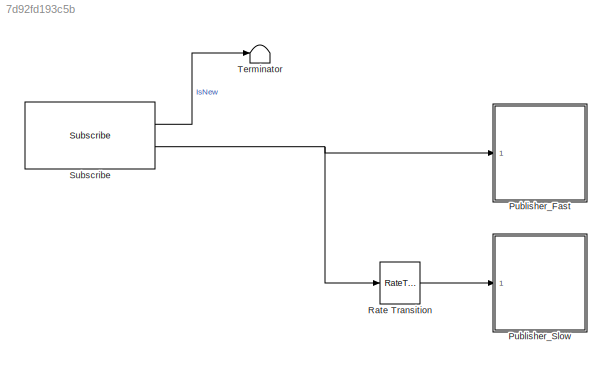
MODEL slx_7d92fd193c5b
KIND model
CONFIG AbsTol = auto
CONFIG EnableMultiTasking = off
CONFIG FixedStep = auto
CONFIG MaxStep = auto
CONFIG MinStep = auto
CONFIG RelTol = 1e-3
CONFIG SampleTimeConstraint = Unconstrained
CONFIG Solver = FixedStepAuto
CONFIG SolverName = FixedStepAuto
CONFIG StartTime = 0.0
CONFIG StopTime = 10.0
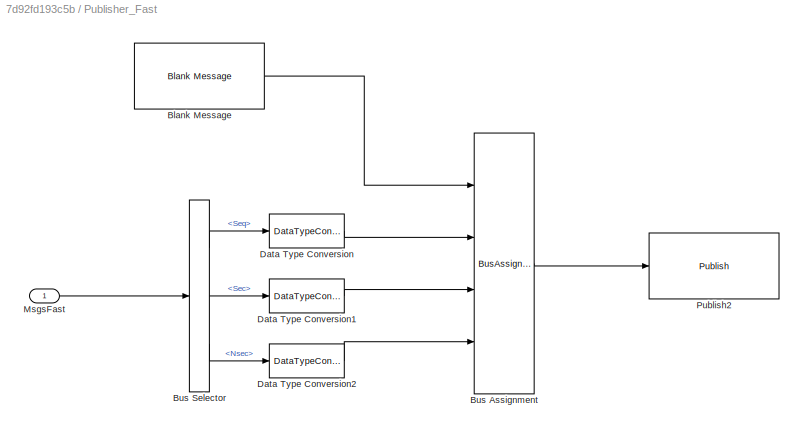
BLOCK [SubSystem] Publisher_Fast
  Ports = [1]
  RequestExecContextInheritance = off
  SystemSampleTime = 0.01
  TreatAsAtomicUnit = on
  Variant = off
BLOCK [Reference] Publisher_Fast/Blank Message  REF=robotlib/Blank Message
  Ports = [0, 1]
  SourceBlock = robotlib/Blank Message
  SourceLibraryInfo = This block requires Robotics System Toolbox
  SourceProductBaseCode = RO
  SourceProductName = Robotics System Toolbox
  SourceType = ROS Blank Message
BLOCK [BusAssignment] Publisher_Fast/Bus Assignment
  AssignedSignals = Point.X,Point.Y,Point.Z
  Ports = [4, 1]
BLOCK [BusSelector] Publisher_Fast/Bus Selector
  OutputAsBus = off
  OutputSignals = Header.Seq,Header.Stamp.Sec,Header.Stamp.Nsec
  Ports = [1, 3]
BLOCK [DataTypeConversion] Publisher_Fast/Data Type Conversion
  RndMeth = Floor
  SaturateOnIntegerOverflow = off
BLOCK [DataTypeConversion] Publisher_Fast/Data Type Conversion1
  RndMeth = Floor
  SaturateOnIntegerOverflow = off
BLOCK [DataTypeConversion] Publisher_Fast/Data Type Conversion2
  RndMeth = Floor
  SaturateOnIntegerOverflow = off
BLOCK [Inport] Publisher_Fast/MsgsFast
  IconDisplay = Port number
BLOCK [Reference] Publisher_Fast/Publish2  REF=robotlib/Publish
  AttributesFormatString = %<messageType>
  Ports = [1]
  SourceBlock = robotlib/Publish
  SourceLibraryInfo = This block requires Robotics System Toolbox
  SourceProductBaseCode = RO
  SourceProductName = Robotics System Toolbox
  SourceType = ROS Publish
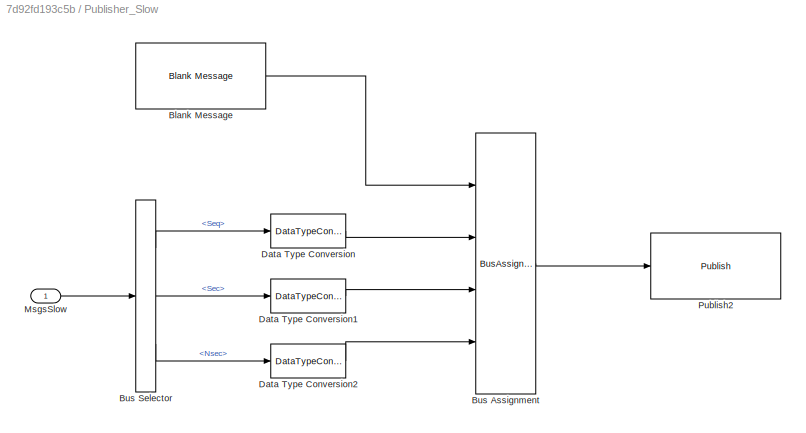
BLOCK [SubSystem] Publisher_Slow
  Ports = [1]
  RequestExecContextInheritance = off
  SystemSampleTime = 0.05
  TreatAsAtomicUnit = on
  Variant = off
BLOCK [Reference] Publisher_Slow/Blank Message  REF=robotlib/Blank Message
  Ports = [0, 1]
  SourceBlock = robotlib/Blank Message
  SourceLibraryInfo = This block requires Robotics System Toolbox
  SourceProductBaseCode = RO
  SourceProductName = Robotics System Toolbox
  SourceType = ROS Blank Message
BLOCK [BusAssignment] Publisher_Slow/Bus Assignment
  AssignedSignals = Point.X,Point.Y,Point.Z
  Ports = [4, 1]
BLOCK [BusSelector] Publisher_Slow/Bus Selector
  OutputAsBus = off
  OutputSignals = Header.Seq,Header.Stamp.Sec,Header.Stamp.Nsec
  Ports = [1, 3]
BLOCK [DataTypeConversion] Publisher_Slow/Data Type Conversion
  RndMeth = Floor
  SaturateOnIntegerOverflow = off
BLOCK [DataTypeConversion] Publisher_Slow/Data Type Conversion1
  RndMeth = Floor
  SaturateOnIntegerOverflow = off
BLOCK [DataTypeConversion] Publisher_Slow/Data Type Conversion2
  RndMeth = Floor
  SaturateOnIntegerOverflow = off
BLOCK [Inport] Publisher_Slow/MsgsSlow
  IconDisplay = Port number
BLOCK [Reference] Publisher_Slow/Publish2  REF=robotlib/Publish
  AttributesFormatString = %<messageType>
  Ports = [1]
  SourceBlock = robotlib/Publish
  SourceLibraryInfo = This block requires Robotics System Toolbox
  SourceProductBaseCode = RO
  SourceProductName = Robotics System Toolbox
  SourceType = ROS Publish
BLOCK [RateTransition] Rate Transition
  OutPortSampleTimeOpt = Inherit
BLOCK [Reference] Subscribe  REF=robotlib/Subscribe
  Ports = [0, 2]
  SourceBlock = robotlib/Subscribe
  SourceLibraryInfo = This block requires Robotics System Toolbox
  SourceProductBaseCode = RO
  SourceProductName = Robotics System Toolbox
  SourceType = ROS Subscribe
BLOCK [Terminator] Terminator
LINE Publisher_Fast/Blank Message:1 -> Publisher_Fast/Bus Assignment:1
LINE Publisher_Fast/Bus Assignment:1 -> Publisher_Fast/Publish2:1
LINE Publisher_Fast/Bus Selector:1 -> Publisher_Fast/Data Type Conversion:1
LINE Publisher_Fast/Bus Selector:2 -> Publisher_Fast/Data Type Conversion1:1
LINE Publisher_Fast/Bus Selector:3 -> Publisher_Fast/Data Type Conversion2:1
LINE Publisher_Fast/Data Type Conversion1:1 -> Publisher_Fast/Bus Assignment:3
LINE Publisher_Fast/Data Type Conversion2:1 -> Publisher_Fast/Bus Assignment:4
LINE Publisher_Fast/Data Type Conversion:1 -> Publisher_Fast/Bus Assignment:2
LINE Publisher_Fast/MsgsFast:1 -> Publisher_Fast/Bus Selector:1
LINE Publisher_Slow/Blank Message:1 -> Publisher_Slow/Bus Assignment:1
LINE Publisher_Slow/Bus Assignment:1 -> Publisher_Slow/Publish2:1
LINE Publisher_Slow/Bus Selector:1 -> Publisher_Slow/Data Type Conversion:1
LINE Publisher_Slow/Bus Selector:2 -> Publisher_Slow/Data Type Conversion1:1
LINE Publisher_Slow/Bus Selector:3 -> Publisher_Slow/Data Type Conversion2:1
LINE Publisher_Slow/Data Type Conversion1:1 -> Publisher_Slow/Bus Assignment:3
LINE Publisher_Slow/Data Type Conversion2:1 -> Publisher_Slow/Bus Assignment:4
LINE Publisher_Slow/Data Type Conversion:1 -> Publisher_Slow/Bus Assignment:2
LINE Publisher_Slow/MsgsSlow:1 -> Publisher_Slow/Bus Selector:1
LINE Rate Transition:1 -> Publisher_Slow:1
LINE Subscribe:1 -> Terminator:1
NET Subscribe:2 -> Publisher_Fast:1, Rate Transition:1
note: NET lines group one-source signal fan-out (src -> all destinations, sorted); 1:1 wires keep LINE
